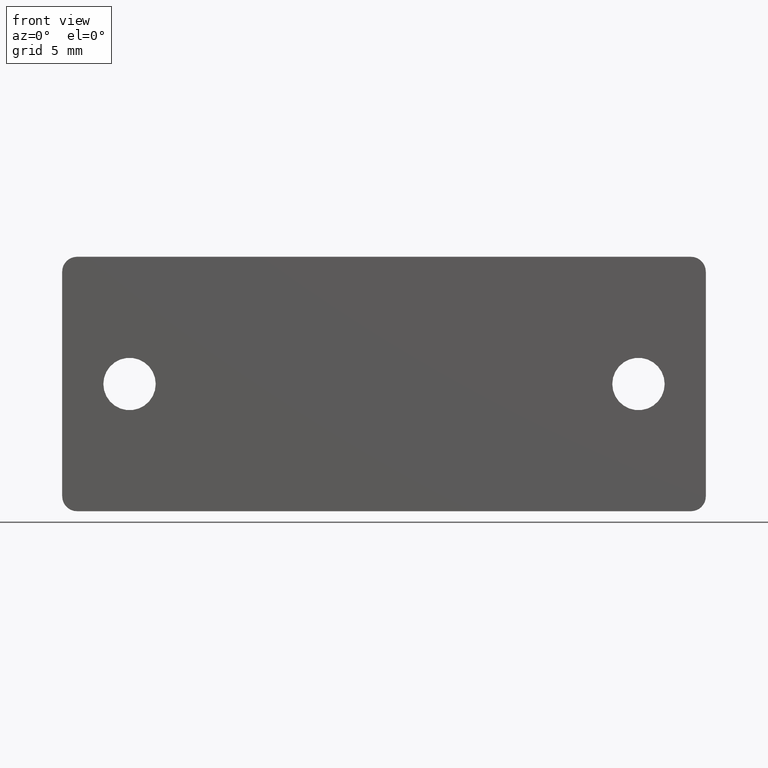
[diagram: clean part render]
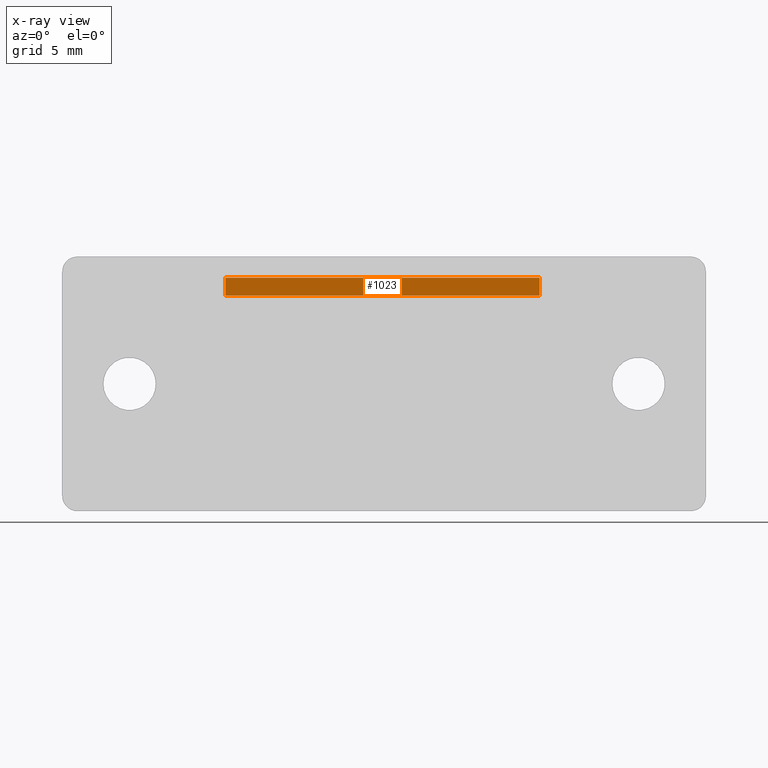
[diagram: x-ray — body ghosted, one internal face saturated and labeled with its STEP entity id]
A machine part, front view, then the same camera in x-ray: the body is ghosted and one INTERNAL B-rep face — a face not visible from any outside direction — is saturated and labeled: STEP entity #1023.
In plain terms, the highlighted planar face has unit normal (0, -1, -0).
Its self-contained STEP definition (entity closure, byte-faithful):
#99=PLANE('',#1118);
#157=FACE_OUTER_BOUND('',#231,.T.);
#231=EDGE_LOOP('',(#948,#949,#950,#951));
#330=LINE('',#1679,#432);
#333=LINE('',#1685,#435);
#336=LINE('',#1691,#438);
#339=LINE('',#1695,#441);
#432=VECTOR('',#1387,21.);
#435=VECTOR('',#1392,1.2);
#438=VECTOR('',#1397,21.);
#441=VECTOR('',#1402,1.2);
#550=VERTEX_POINT('',#1676);
#551=VERTEX_POINT('',#1678);
#553=VERTEX_POINT('',#1684);
#555=VERTEX_POINT('',#1690);
#678=EDGE_CURVE('',#551,#550,#330,.T.);
#681=EDGE_CURVE('',#553,#551,#333,.T.);
#684=EDGE_CURVE('',#555,#553,#336,.T.);
#687=EDGE_CURVE('',#550,#555,#339,.T.);
#948=ORIENTED_EDGE('',*,*,#687,.T.);
#949=ORIENTED_EDGE('',*,*,#684,.T.);
#950=ORIENTED_EDGE('',*,*,#681,.T.);
#951=ORIENTED_EDGE('',*,*,#678,.T.);
#1023=ADVANCED_FACE('',(#157),#99,.T.);
#1118=AXIS2_PLACEMENT_3D('',#1697,#1405,#1406);
#1387=DIRECTION('',(1.,0.,0.));
#1392=DIRECTION('',(-3.70074341541719E-15,1.,0.));
#1397=DIRECTION('',(-1.,0.,0.));
#1402=DIRECTION('',(3.70074341541719E-15,-1.,0.));
#1405=DIRECTION('center_axis',(0.,0.,-1.));
#1406=DIRECTION('ref_axis',(-1.,0.,0.));
#1676=CARTESIAN_POINT('',(10.5,7.,-4.4));
#1678=CARTESIAN_POINT('',(-10.5,7.,-4.4));
#1679=CARTESIAN_POINT('',(10.5,7.,-4.4));
#1684=CARTESIAN_POINT('',(-10.5,5.8,-4.4));
#1685=CARTESIAN_POINT('',(-10.5,7.,-4.4));
#1690=CARTESIAN_POINT('',(10.5,5.8,-4.4));
#1691=CARTESIAN_POINT('',(-10.5,5.8,-4.4));
#1695=CARTESIAN_POINT('',(10.5,5.8,-4.4));
#1697=CARTESIAN_POINT('Origin',(-2.22044604925031E-15,6.4,-4.4));